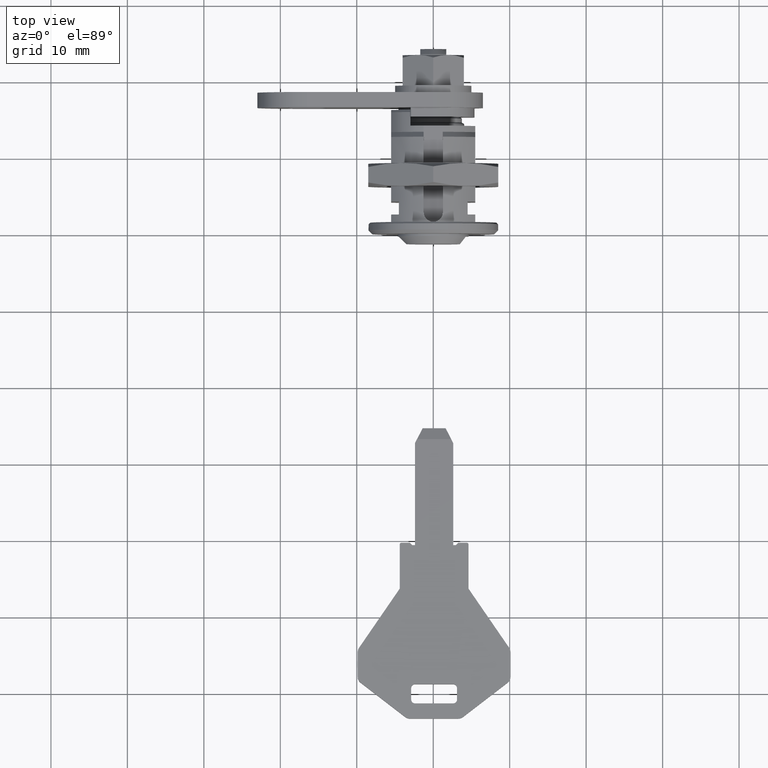
[diagram: clean part render]
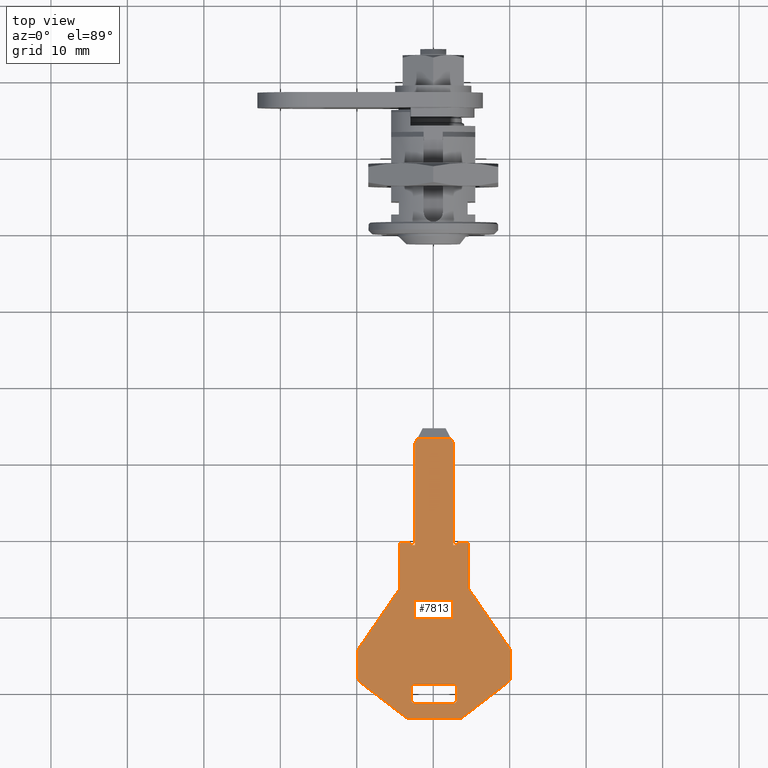
[diagram: same view with one face highlighted and labeled with its STEP entity id]
A machine part, top view. The second image highlights one B-rep face of the part: STEP entity #7813.
In plain terms, the highlighted face is a freeform B-spline surface patch.
Its self-contained STEP definition (entity closure, byte-faithful):
#6397=CARTESIAN_POINT('',(-26.804951253183500,-2.344554118247190,0.900000000000000));
#6398=VERTEX_POINT('',#6397);
#6413=CARTESIAN_POINT('',(-26.804951253596450,2.114778545015325,0.900000000150315));
#6414=VERTEX_POINT('',#6413);
#6420=CARTESIAN_POINT('',(-26.804951253596450,2.114778545015325,0.900000000150315));
#6421=CARTESIAN_POINT('',(-26.804951253183500,-2.344554118247190,0.900000000000000));
#6422=QUASI_UNIFORM_CURVE('',1,(#6420,#6421),.UNSPECIFIED.,.F.,.U.);
#6423=EDGE_CURVE('',#6414,#6398,#6422,.T.);
#6480=CARTESIAN_POINT('',(-58.872900445619287,2.385112213383990,0.900000000143564));
#6481=VERTEX_POINT('',#6480);
#6487=CARTESIAN_POINT('',(-59.372900445619301,2.885112213383990,0.900000000150295));
#6488=VERTEX_POINT('',#6487);
#6489=CARTESIAN_POINT('',(-58.872900445619287,2.385112213383990,0.900000000143564));
#6490=CARTESIAN_POINT('',(-58.872900445619294,2.885112213383990,0.900000000150295));
#6491=CARTESIAN_POINT('',(-59.372900445619301,2.885112213383990,0.900000000150295));
#6499=(BOUNDED_CURVE()B_SPLINE_CURVE(2,(#6489,#6490,#6491),.UNSPECIFIED.,.F.,.U.)CURVE()GEOMETRIC_REPRESENTATION_ITEM()QUASI_UNIFORM_CURVE()RATIONAL_B_SPLINE_CURVE((1.0,0.707106781186548,1.0))REPRESENTATION_ITEM(''));
#6500=EDGE_CURVE('',#6481,#6488,#6499,.T.);
#6532=CARTESIAN_POINT('',(-58.872900445619997,-2.614887786616010,0.900000000150295));
#6533=VERTEX_POINT('',#6532);
#6539=CARTESIAN_POINT('',(-58.872900445619997,-2.614887786616010,0.900000000150295));
#6540=CARTESIAN_POINT('',(-58.872900445619287,2.385112213383990,0.900000000143564));
#6541=QUASI_UNIFORM_CURVE('',1,(#6539,#6540),.UNSPECIFIED.,.F.,.U.);
#6542=EDGE_CURVE('',#6533,#6481,#6541,.T.);
#6569=CARTESIAN_POINT('',(-59.372900445619997,-3.114887786616010,0.900000000150295));
#6570=VERTEX_POINT('',#6569);
#6576=CARTESIAN_POINT('',(-59.372900445619997,-3.114887786616010,0.900000000150295));
#6577=CARTESIAN_POINT('',(-58.872900445619997,-3.114887786616011,0.900000000150295));
#6578=CARTESIAN_POINT('',(-58.872900445619997,-2.614887786616010,0.900000000150295));
#6586=(BOUNDED_CURVE()B_SPLINE_CURVE(2,(#6576,#6577,#6578),.UNSPECIFIED.,.F.,.U.)CURVE()GEOMETRIC_REPRESENTATION_ITEM()QUASI_UNIFORM_CURVE()RATIONAL_B_SPLINE_CURVE((1.0,0.707106781186548,1.0))REPRESENTATION_ITEM(''));
#6587=EDGE_CURVE('',#6570,#6533,#6586,.T.);
#6613=CARTESIAN_POINT('',(-60.872900445619997,-3.114887786616010,0.900000000150295));
#6614=VERTEX_POINT('',#6613);
#6620=CARTESIAN_POINT('',(-60.872900445619997,-3.114887786616010,0.900000000150295));
#6621=CARTESIAN_POINT('',(-59.372900445619997,-3.114887786616010,0.900000000150295));
#6622=QUASI_UNIFORM_CURVE('',1,(#6620,#6621),.UNSPECIFIED.,.F.,.U.);
#6623=EDGE_CURVE('',#6614,#6570,#6622,.T.);
#6650=CARTESIAN_POINT('',(-61.372900445619997,-2.614887786615895,0.900000000150295));
#6651=VERTEX_POINT('',#6650);
#6657=CARTESIAN_POINT('',(-61.372900445619997,-2.614887786615895,0.900000000150295));
#6658=CARTESIAN_POINT('',(-61.372900445620047,-2.821994567802476,0.900000000150295));
#6659=CARTESIAN_POINT('',(-61.226453836213317,-2.968441177209243,0.900000000150295));
#6660=CARTESIAN_POINT('',(-61.080007226806579,-3.114887786616011,0.900000000150295));
#6661=CARTESIAN_POINT('',(-60.872900445619997,-3.114887786616010,0.900000000150295));
#6669=(BOUNDED_CURVE()B_SPLINE_CURVE(2,(#6657,#6658,#6659,#6660,#6661),.UNSPECIFIED.,.F.,.U.)B_SPLINE_CURVE_WITH_KNOTS((3,2,3),(0.0,0.500000000000000,1.0),.UNSPECIFIED.)CURVE()GEOMETRIC_REPRESENTATION_ITEM()RATIONAL_B_SPLINE_CURVE((1.0,0.923879532511265,1.0,0.923879532511265,1.0))REPRESENTATION_ITEM(''));
#6670=EDGE_CURVE('',#6651,#6614,#6669,.T.);
#6696=CARTESIAN_POINT('',(-61.372900445619301,2.385112213383990,0.900000000150295));
#6697=VERTEX_POINT('',#6696);
#6703=CARTESIAN_POINT('',(-61.372900445619301,2.385112213383990,0.900000000150295));
#6704=CARTESIAN_POINT('',(-61.372900445619997,-2.614887786615895,0.900000000150295));
#6705=QUASI_UNIFORM_CURVE('',1,(#6703,#6704),.UNSPECIFIED.,.F.,.U.);
#6706=EDGE_CURVE('',#6697,#6651,#6705,.T.);
#6733=CARTESIAN_POINT('',(-60.872900445619301,2.885112213383990,0.900000000150295));
#6734=VERTEX_POINT('',#6733);
#6740=CARTESIAN_POINT('',(-60.872900445619301,2.885112213383990,0.900000000150295));
#6741=CARTESIAN_POINT('',(-61.372900445619294,2.885112213383990,0.900000000150295));
#6742=CARTESIAN_POINT('',(-61.372900445619301,2.385112213383990,0.900000000150295));
#6750=(BOUNDED_CURVE()B_SPLINE_CURVE(2,(#6740,#6741,#6742),.UNSPECIFIED.,.F.,.U.)CURVE()GEOMETRIC_REPRESENTATION_ITEM()QUASI_UNIFORM_CURVE()RATIONAL_B_SPLINE_CURVE((1.0,0.707106781186548,1.0))REPRESENTATION_ITEM(''));
#6751=EDGE_CURVE('',#6734,#6697,#6750,.T.);
#6776=CARTESIAN_POINT('',(-59.372900445619301,2.885112213383990,0.900000000150295));
#6777=CARTESIAN_POINT('',(-60.872900445619301,2.885112213383990,0.900000000150295));
#6778=QUASI_UNIFORM_CURVE('',1,(#6776,#6777),.UNSPECIFIED.,.F.,.U.);
#6779=EDGE_CURVE('',#6488,#6734,#6778,.T.);
#6823=CARTESIAN_POINT('',(-40.572900445619098,4.385112213384115,0.900000000150336));
#6824=VERTEX_POINT('',#6823);
#6830=CARTESIAN_POINT('',(-40.372900445619052,4.185112213384000,0.900000000150336));
#6831=VERTEX_POINT('',#6830);
#6832=CARTESIAN_POINT('',(-40.372900445619102,4.185112213384000,0.900000000150336));
#6833=CARTESIAN_POINT('',(-40.372900445619067,4.267954925858652,0.900000000150336));
#6834=CARTESIAN_POINT('',(-40.431479089381753,4.326533569621384,0.900000000150336));
#6835=CARTESIAN_POINT('',(-40.490057733144447,4.385112213384115,0.900000000150336));
#6836=CARTESIAN_POINT('',(-40.572900445619098,4.385112213384115,0.900000000150336));
#6844=(BOUNDED_CURVE()B_SPLINE_CURVE(2,(#6832,#6833,#6834,#6835,#6836),.UNSPECIFIED.,.F.,.U.)B_SPLINE_CURVE_WITH_KNOTS((3,2,3),(0.0,0.500000000000000,1.0),.UNSPECIFIED.)CURVE()GEOMETRIC_REPRESENTATION_ITEM()RATIONAL_B_SPLINE_CURVE((1.0,0.923879532511232,1.0,0.923879532511232,1.0))REPRESENTATION_ITEM(''));
#6845=EDGE_CURVE('',#6831,#6824,#6844,.T.);
#6868=CARTESIAN_POINT('',(-40.372900445620097,3.035112213384395,0.900000000150336));
#6869=VERTEX_POINT('',#6868);
#6870=CARTESIAN_POINT('',(-40.372900445620097,3.035112213384395,0.900000000150336));
#6871=CARTESIAN_POINT('',(-40.372900445619052,4.185112213384000,0.900000000150336));
#6872=QUASI_UNIFORM_CURVE('',1,(#6870,#6871),.UNSPECIFIED.,.F.,.U.);
#6873=EDGE_CURVE('',#6869,#6831,#6872,.T.);
#6896=CARTESIAN_POINT('',(-40.672900445620002,2.735112213384015,0.900000000150336));
#6897=VERTEX_POINT('',#6896);
#6898=CARTESIAN_POINT('',(-40.672900445620002,2.735112213384015,0.900000000150336));
#6899=CARTESIAN_POINT('',(-40.372900445620097,3.035112213384395,0.900000000150336));
#6900=QUASI_UNIFORM_CURVE('',1,(#6898,#6899),.UNSPECIFIED.,.F.,.U.);
#6901=EDGE_CURVE('',#6897,#6869,#6900,.T.);
#6924=CARTESIAN_POINT('',(-40.672900445620002,2.385112213383990,0.900000000150336));
#6925=VERTEX_POINT('',#6924);
#6926=CARTESIAN_POINT('',(-40.672900445620002,2.385112213383990,0.900000000150336));
#6927=CARTESIAN_POINT('',(-40.672900445620002,2.735112213384015,0.900000000150336));
#6928=QUASI_UNIFORM_CURVE('',1,(#6926,#6927),.UNSPECIFIED.,.F.,.U.);
#6929=EDGE_CURVE('',#6925,#6897,#6928,.T.);
#6952=CARTESIAN_POINT('',(-27.335510951127748,2.385112213382910,0.900000000150336));
#6953=VERTEX_POINT('',#6952);
#6954=CARTESIAN_POINT('',(-27.335510951127748,2.385112213382910,0.900000000150336));
#6955=CARTESIAN_POINT('',(-40.672900445620002,2.385112213383990,0.900000000150336));
#6956=QUASI_UNIFORM_CURVE('',1,(#6954,#6955),.UNSPECIFIED.,.F.,.U.);
#6957=EDGE_CURVE('',#6953,#6925,#6956,.T.);
#6981=CARTESIAN_POINT('',(-27.335510951130050,-2.614887786616010,0.900000000150336));
#6982=VERTEX_POINT('',#6981);
#6988=CARTESIAN_POINT('',(-40.672900445620002,-2.614887786615895,0.900000000150336));
#6989=VERTEX_POINT('',#6988);
#6990=CARTESIAN_POINT('',(-40.672900445620002,-2.614887786615895,0.900000000150336));
#6991=CARTESIAN_POINT('',(-27.335510951130050,-2.614887786616010,0.900000000150336));
#6992=QUASI_UNIFORM_CURVE('',1,(#6990,#6991),.UNSPECIFIED.,.F.,.U.);
#6993=EDGE_CURVE('',#6989,#6982,#6992,.T.);
#7016=CARTESIAN_POINT('',(-40.672900445620002,-2.964887786616005,0.900000000150336));
#7017=VERTEX_POINT('',#7016);
#7018=CARTESIAN_POINT('',(-40.672900445620002,-2.964887786616005,0.900000000150336));
#7019=CARTESIAN_POINT('',(-40.672900445620002,-2.614887786615895,0.900000000150336));
#7020=QUASI_UNIFORM_CURVE('',1,(#7018,#7019),.UNSPECIFIED.,.F.,.U.);
#7021=EDGE_CURVE('',#7017,#6989,#7020,.T.);
#7044=CARTESIAN_POINT('',(-40.372900445620047,-3.264887786616300,0.900000000150336));
#7045=VERTEX_POINT('',#7044);
#7046=CARTESIAN_POINT('',(-40.372900445620047,-3.264887786616300,0.900000000150336));
#7047=CARTESIAN_POINT('',(-40.672900445620002,-2.964887786616005,0.900000000150336));
#7048=QUASI_UNIFORM_CURVE('',1,(#7046,#7047),.UNSPECIFIED.,.F.,.U.);
#7049=EDGE_CURVE('',#7045,#7017,#7048,.T.);
#7072=CARTESIAN_POINT('',(-40.372900445620203,-4.414887786615990,0.900000000150336));
#7073=VERTEX_POINT('',#7072);
#7074=CARTESIAN_POINT('',(-40.372900445620203,-4.414887786615990,0.900000000150336));
#7075=CARTESIAN_POINT('',(-40.372900445620047,-3.264887786616300,0.900000000150336));
#7076=QUASI_UNIFORM_CURVE('',1,(#7074,#7075),.UNSPECIFIED.,.F.,.U.);
#7077=EDGE_CURVE('',#7073,#7045,#7076,.T.);
#7119=CARTESIAN_POINT('',(-40.572900445620249,-4.614887786616010,0.900000000150336));
#7120=VERTEX_POINT('',#7119);
#7121=CARTESIAN_POINT('',(-40.572900445620249,-4.614887786615989,0.900000000150336));
#7122=CARTESIAN_POINT('',(-40.490057733145619,-4.614887786616010,0.900000000150336));
#7123=CARTESIAN_POINT('',(-40.431479089382911,-4.556309142853317,0.900000000150336));
#7124=CARTESIAN_POINT('',(-40.372900445620196,-4.497730499090623,0.900000000150336));
#7125=CARTESIAN_POINT('',(-40.372900445620203,-4.414887786615990,0.900000000150336));
#7133=(BOUNDED_CURVE()B_SPLINE_CURVE(2,(#7121,#7122,#7123,#7124,#7125),.UNSPECIFIED.,.F.,.U.)B_SPLINE_CURVE_WITH_KNOTS((3,2,3),(0.0,0.500000000000000,1.0),.UNSPECIFIED.)CURVE()GEOMETRIC_REPRESENTATION_ITEM()RATIONAL_B_SPLINE_CURVE((1.0,0.923879532511264,1.0,0.923879532511264,1.0))REPRESENTATION_ITEM(''));
#7134=EDGE_CURVE('',#7120,#7073,#7133,.T.);
#7157=CARTESIAN_POINT('',(-46.372900445620203,-4.614887786616010,0.900000000150336));
#7158=VERTEX_POINT('',#7157);
#7159=CARTESIAN_POINT('',(-46.372900445620203,-4.614887786616010,0.900000000150336));
#7160=CARTESIAN_POINT('',(-40.572900445620249,-4.614887786616010,0.900000000150336));
#7161=QUASI_UNIFORM_CURVE('',1,(#7159,#7160),.UNSPECIFIED.,.F.,.U.);
#7162=EDGE_CURVE('',#7158,#7120,#7161,.T.);
#7185=CARTESIAN_POINT('',(-54.116961426285300,-9.938929710815751,0.900000000150336));
#7186=VERTEX_POINT('',#7185);
#7187=CARTESIAN_POINT('',(-54.116961426285300,-9.938929710815751,0.900000000150336));
#7188=CARTESIAN_POINT('',(-46.372900445620203,-4.614887786616010,0.900000000150336));
#7189=QUASI_UNIFORM_CURVE('',1,(#7187,#7188),.UNSPECIFIED.,.F.,.U.);
#7190=EDGE_CURVE('',#7186,#7158,#7189,.T.);
#7230=CARTESIAN_POINT('',(-54.683490249171797,-10.114887786616000,0.900000000150336));
#7231=VERTEX_POINT('',#7230);
#7232=CARTESIAN_POINT('',(-54.683490249171797,-10.114887786616009,0.900000000150336));
#7233=CARTESIAN_POINT('',(-54.372900445631473,-10.114887786616011,0.900000000150336));
#7234=CARTESIAN_POINT('',(-54.116961426285293,-9.938929710815764,0.900000000150336));
#7242=(BOUNDED_CURVE()B_SPLINE_CURVE(2,(#7232,#7233,#7234),.UNSPECIFIED.,.F.,.U.)CURVE()GEOMETRIC_REPRESENTATION_ITEM()QUASI_UNIFORM_CURVE()RATIONAL_B_SPLINE_CURVE((1.0,0.954997885913825,1.0))REPRESENTATION_ITEM(''));
#7243=EDGE_CURVE('',#7231,#7186,#7242,.T.);
#7266=CARTESIAN_POINT('',(-57.880498948164913,-10.114887786616000,0.900000000150336));
#7267=VERTEX_POINT('',#7266);
#7268=CARTESIAN_POINT('',(-57.880498948164913,-10.114887786616000,0.900000000150336));
#7269=CARTESIAN_POINT('',(-54.683490249171797,-10.114887786616000,0.900000000150336));
#7270=QUASI_UNIFORM_CURVE('',1,(#7268,#7269),.UNSPECIFIED.,.F.,.U.);
#7271=EDGE_CURVE('',#7267,#7231,#7270,.T.);
#7311=CARTESIAN_POINT('',(-58.673122937269099,-9.724598547466091,0.900000000150336));
#7312=VERTEX_POINT('',#7311);
#7313=CARTESIAN_POINT('',(-58.673122937269163,-9.724598547466142,0.900000000150336));
#7314=CARTESIAN_POINT('',(-58.372900445615080,-10.114887786616011,0.900000000150336));
#7315=CARTESIAN_POINT('',(-57.880498948164913,-10.114887786616009,0.900000000150336));
#7323=(BOUNDED_CURVE()B_SPLINE_CURVE(2,(#7313,#7314,#7315),.UNSPECIFIED.,.F.,.U.)CURVE()GEOMETRIC_REPRESENTATION_ITEM()QUASI_UNIFORM_CURVE()RATIONAL_B_SPLINE_CURVE((1.0,0.897137325288089,1.0))REPRESENTATION_ITEM(''));
#7324=EDGE_CURVE('',#7312,#7267,#7323,.T.);
#7347=CARTESIAN_POINT('',(-63.165524434724411,-3.884476600780175,0.900000000150336));
#7348=VERTEX_POINT('',#7347);
#7349=CARTESIAN_POINT('',(-63.165524434724411,-3.884476600780175,0.900000000150336));
#7350=CARTESIAN_POINT('',(-58.673122937269099,-9.724598547466091,0.900000000150336));
#7351=QUASI_UNIFORM_CURVE('',1,(#7349,#7350),.UNSPECIFIED.,.F.,.U.);
#7352=EDGE_CURVE('',#7348,#7312,#7351,.T.);
#7392=CARTESIAN_POINT('',(-63.372900445620097,-3.274765839930010,0.900000000150336));
#7393=VERTEX_POINT('',#7392);
#7394=CARTESIAN_POINT('',(-63.372900445620090,-3.274765839930100,0.900000000150336));
#7395=CARTESIAN_POINT('',(-63.372900445620097,-3.614887786616040,0.900000000150336));
#7396=CARTESIAN_POINT('',(-63.165524434724411,-3.884476600780172,0.900000000150336));
#7404=(BOUNDED_CURVE()B_SPLINE_CURVE(2,(#7394,#7395,#7396),.UNSPECIFIED.,.F.,.U.)CURVE()GEOMETRIC_REPRESENTATION_ITEM()QUASI_UNIFORM_CURVE()RATIONAL_B_SPLINE_CURVE((1.0,0.946737553154069,1.0))REPRESENTATION_ITEM(''));
#7405=EDGE_CURVE('',#7393,#7348,#7404,.T.);
#7428=CARTESIAN_POINT('',(-63.372900445619202,3.044990266698195,0.900000000150336));
#7429=VERTEX_POINT('',#7428);
#7430=CARTESIAN_POINT('',(-63.372900445619202,3.044990266698195,0.900000000150336));
#7431=CARTESIAN_POINT('',(-63.372900445620097,-3.274765839930010,0.900000000150336));
#7432=QUASI_UNIFORM_CURVE('',1,(#7430,#7431),.UNSPECIFIED.,.F.,.U.);
#7433=EDGE_CURVE('',#7429,#7393,#7432,.T.);
#7473=CARTESIAN_POINT('',(-63.165524434723700,3.654701027548100,0.900000000150336));
#7474=VERTEX_POINT('',#7473);
#7475=CARTESIAN_POINT('',(-63.165524434723658,3.654701027548070,0.900000000150336));
#7476=CARTESIAN_POINT('',(-63.372900445619202,3.385112213383996,0.900000000150336));
#7477=CARTESIAN_POINT('',(-63.372900445619202,3.044990266698195,0.900000000150336));
#7485=(BOUNDED_CURVE()B_SPLINE_CURVE(2,(#7475,#7476,#7477),.UNSPECIFIED.,.F.,.U.)CURVE()GEOMETRIC_REPRESENTATION_ITEM()QUASI_UNIFORM_CURVE()RATIONAL_B_SPLINE_CURVE((1.0,0.946737553154109,1.0))REPRESENTATION_ITEM(''));
#7486=EDGE_CURVE('',#7474,#7429,#7485,.T.);
#7509=CARTESIAN_POINT('',(-58.673122937271899,9.494822974233800,0.900000000150336));
#7510=VERTEX_POINT('',#7509);
#7511=CARTESIAN_POINT('',(-58.673122937271899,9.494822974233800,0.900000000150336));
#7512=CARTESIAN_POINT('',(-63.165524434723700,3.654701027548100,0.900000000150336));
#7513=QUASI_UNIFORM_CURVE('',1,(#7511,#7512),.UNSPECIFIED.,.F.,.U.);
#7514=EDGE_CURVE('',#7510,#7474,#7513,.T.);
#7554=CARTESIAN_POINT('',(-57.880498948167400,9.885112213383989,0.900000000150336));
#7555=VERTEX_POINT('',#7554);
#7556=CARTESIAN_POINT('',(-57.880498948167400,9.885112213383989,0.900000000150336));
#7557=CARTESIAN_POINT('',(-58.372900445617816,9.885112213383989,0.900000000150336));
#7558=CARTESIAN_POINT('',(-58.673122937271913,9.494822974233806,0.900000000150336));
#7566=(BOUNDED_CURVE()B_SPLINE_CURVE(2,(#7556,#7557,#7558),.UNSPECIFIED.,.F.,.U.)CURVE()GEOMETRIC_REPRESENTATION_ITEM()QUASI_UNIFORM_CURVE()RATIONAL_B_SPLINE_CURVE((1.0,0.897137325288001,1.0))REPRESENTATION_ITEM(''));
#7567=EDGE_CURVE('',#7555,#7510,#7566,.T.);
#7590=CARTESIAN_POINT('',(-54.683490249160698,9.885112213384110,0.900000000150336));
#7591=VERTEX_POINT('',#7590);
#7592=CARTESIAN_POINT('',(-54.683490249160698,9.885112213384110,0.900000000150336));
#7593=CARTESIAN_POINT('',(-57.880498948167400,9.885112213383989,0.900000000150336));
#7594=QUASI_UNIFORM_CURVE('',1,(#7592,#7593),.UNSPECIFIED.,.F.,.U.);
#7595=EDGE_CURVE('',#7591,#7555,#7594,.T.);
#7635=CARTESIAN_POINT('',(-54.116961426273697,9.709154137583399,0.900000000150336));
#7636=VERTEX_POINT('',#7635);
#7637=CARTESIAN_POINT('',(-54.116961426273647,9.709154137583473,0.900000000150336));
#7638=CARTESIAN_POINT('',(-54.372900445620004,9.885112213384099,0.900000000150336));
#7639=CARTESIAN_POINT('',(-54.683490249160698,9.885112213384099,0.900000000150336));
#7647=(BOUNDED_CURVE()B_SPLINE_CURVE(2,(#7637,#7638,#7639),.UNSPECIFIED.,.F.,.U.)CURVE()GEOMETRIC_REPRESENTATION_ITEM()QUASI_UNIFORM_CURVE()RATIONAL_B_SPLINE_CURVE((1.0,0.954997885913727,1.0))REPRESENTATION_ITEM(''));
#7648=EDGE_CURVE('',#7636,#7591,#7647,.T.);
#7671=CARTESIAN_POINT('',(-46.372900445619003,4.385112213383990,0.900000000150336));
#7672=VERTEX_POINT('',#7671);
#7673=CARTESIAN_POINT('',(-46.372900445619003,4.385112213383990,0.900000000150336));
#7674=CARTESIAN_POINT('',(-54.116961426273697,9.709154137583399,0.900000000150336));
#7675=QUASI_UNIFORM_CURVE('',1,(#7673,#7674),.UNSPECIFIED.,.F.,.U.);
#7676=EDGE_CURVE('',#7672,#7636,#7675,.T.);
#7697=CARTESIAN_POINT('',(-40.572900445619098,4.385112213384115,0.900000000150336));
#7698=CARTESIAN_POINT('',(-46.372900445619003,4.385112213383990,0.900000000150336));
#7699=QUASI_UNIFORM_CURVE('',1,(#7697,#7698),.UNSPECIFIED.,.F.,.U.);
#7700=EDGE_CURVE('',#6824,#7672,#7699,.T.);
#7760=CARTESIAN_POINT('',(-65.199471153275240,10.884111799128849,0.900000000150295));
#7761=CARTESIAN_POINT('',(-24.978381199414240,10.884111799128849,0.900000000150295));
#7762=CARTESIAN_POINT('',(-65.199471153275240,-11.113888266430420,0.900000000150295));
#7763=CARTESIAN_POINT('',(-24.978381199414240,-11.113888266430420,0.900000000150295));
#7764=B_SPLINE_SURFACE_WITH_KNOTS('',1,1,((#7760,#7762),(#7761,#7763)),.UNSPECIFIED.,.F.,.F.,.U.,(2,2),(2,2),(0.0,40.221089953860997),(0.0,21.998000065559271),.UNSPECIFIED.);
#7765=CARTESIAN_POINT('',(-27.335510951130050,-2.614887786616010,0.900000000150336));
#7766=CARTESIAN_POINT('',(-26.804951253183500,-2.344554118247190,0.900000000000000));
#7767=QUASI_UNIFORM_CURVE('',1,(#7765,#7766),.UNSPECIFIED.,.F.,.U.);
#7768=EDGE_CURVE('',#6982,#6398,#7767,.T.);
#7769=ORIENTED_EDGE('',*,*,#7768,.T.);
#7770=ORIENTED_EDGE('',*,*,#6423,.F.);
#7771=CARTESIAN_POINT('',(-26.804951253596450,2.114778545015325,0.900000000150315));
#7772=CARTESIAN_POINT('',(-27.335510951127748,2.385112213382910,0.900000000150336));
#7773=QUASI_UNIFORM_CURVE('',1,(#7771,#7772),.UNSPECIFIED.,.F.,.U.);
#7774=EDGE_CURVE('',#6414,#6953,#7773,.T.);
#7775=ORIENTED_EDGE('',*,*,#7774,.T.);
#7776=ORIENTED_EDGE('',*,*,#6957,.T.);
#7777=ORIENTED_EDGE('',*,*,#6929,.T.);
#7778=ORIENTED_EDGE('',*,*,#6901,.T.);
#7779=ORIENTED_EDGE('',*,*,#6873,.T.);
#7780=ORIENTED_EDGE('',*,*,#6845,.T.);
#7781=ORIENTED_EDGE('',*,*,#7700,.T.);
#7782=ORIENTED_EDGE('',*,*,#7676,.T.);
#7783=ORIENTED_EDGE('',*,*,#7648,.T.);
#7784=ORIENTED_EDGE('',*,*,#7595,.T.);
#7785=ORIENTED_EDGE('',*,*,#7567,.T.);
#7786=ORIENTED_EDGE('',*,*,#7514,.T.);
#7787=ORIENTED_EDGE('',*,*,#7486,.T.);
#7788=ORIENTED_EDGE('',*,*,#7433,.T.);
#7789=ORIENTED_EDGE('',*,*,#7405,.T.);
#7790=ORIENTED_EDGE('',*,*,#7352,.T.);
#7791=ORIENTED_EDGE('',*,*,#7324,.T.);
#7792=ORIENTED_EDGE('',*,*,#7271,.T.);
#7793=ORIENTED_EDGE('',*,*,#7243,.T.);
#7794=ORIENTED_EDGE('',*,*,#7190,.T.);
#7795=ORIENTED_EDGE('',*,*,#7162,.T.);
#7796=ORIENTED_EDGE('',*,*,#7134,.T.);
#7797=ORIENTED_EDGE('',*,*,#7077,.T.);
#7798=ORIENTED_EDGE('',*,*,#7049,.T.);
#7799=ORIENTED_EDGE('',*,*,#7021,.T.);
#7800=ORIENTED_EDGE('',*,*,#6993,.T.);
#7801=EDGE_LOOP('',(#7769,#7770,#7775,#7776,#7777,#7778,#7779,#7780,#7781,#7782,#7783,#7784,#7785,#7786,#7787,#7788,#7789,#7790,#7791,#7792,#7793,#7794,#7795,#7796,#7797,#7798,#7799,#7800));
#7802=FACE_OUTER_BOUND('',#7801,.T.);
#7803=ORIENTED_EDGE('',*,*,#6779,.F.);
#7804=ORIENTED_EDGE('',*,*,#6500,.F.);
#7805=ORIENTED_EDGE('',*,*,#6542,.F.);
#7806=ORIENTED_EDGE('',*,*,#6587,.F.);
#7807=ORIENTED_EDGE('',*,*,#6623,.F.);
#7808=ORIENTED_EDGE('',*,*,#6670,.F.);
#7809=ORIENTED_EDGE('',*,*,#6706,.F.);
#7810=ORIENTED_EDGE('',*,*,#6751,.F.);
#7811=EDGE_LOOP('',(#7803,#7804,#7805,#7806,#7807,#7808,#7809,#7810));
#7812=FACE_BOUND('',#7811,.T.);
#7813=ADVANCED_FACE('',(#7802,#7812),#7764,.F.);